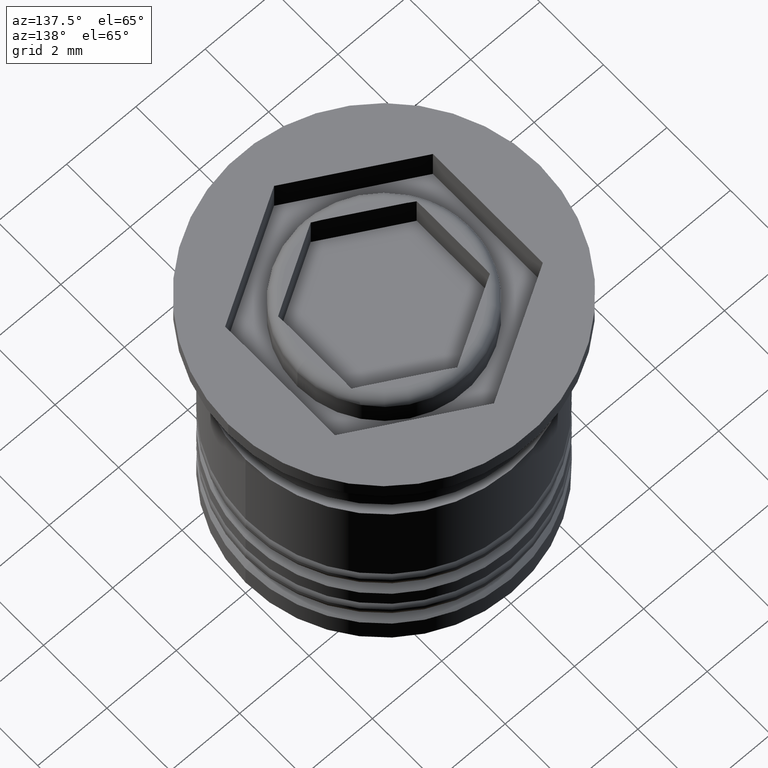
[diagram: clean part render]
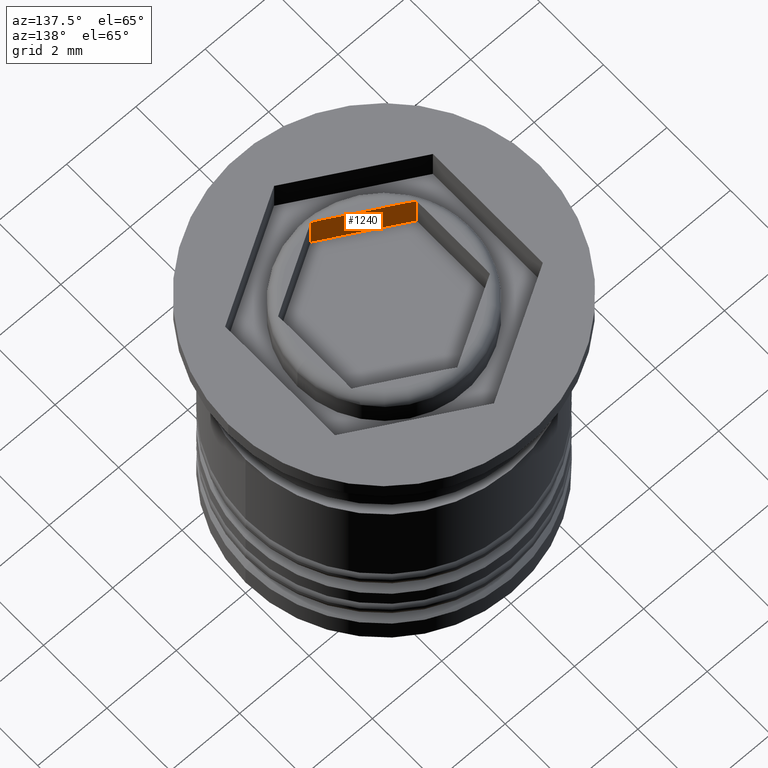
[diagram: same view with one face highlighted and labeled with its STEP entity id]
A machine part, auxiliary view. The second image highlights one B-rep face of the part: STEP entity #1240.
In plain terms, the highlighted planar face has unit normal (-0.5, -0.866, 0).
Its self-contained STEP definition (entity closure, byte-faithful):
#5 = CARTESIAN_POINT ( 'NONE',  ( -2.168404344971008868E-16, -2.309401076758503368, -7.110100926607787919 ) ) ;
#7 = CARTESIAN_POINT ( 'NONE',  ( -0.1369991406722239902, -2.230304586012647139, 0.000000000000000000 ) ) ;
#10 = CARTESIAN_POINT ( 'NONE',  ( -2.000000000000000444, -1.154700538379251684, -1.000000000000000000 ) ) ;
#15 = ORIENTED_EDGE ( 'NONE', *, *, #142, .T. ) ;
#28 = VERTEX_POINT ( 'NONE', #1066 ) ;
#38 = ORIENTED_EDGE ( 'NONE', *, *, #450, .T. ) ;
#93 = CARTESIAN_POINT ( 'NONE',  ( -0.2062746066806217526, -2.190308377064462242, 0.000000000000000000 ) ) ;
#103 = LINE ( 'NONE', #1635, #305 ) ;
#142 = EDGE_CURVE ( 'NONE', #1259, #28, #1412, .T. ) ;
#147 = CARTESIAN_POINT ( 'NONE',  ( -1.931881487280481702, -1.194028780034662729, -0.005256474890640312932 ) ) ;
#236 = CARTESIAN_POINT ( 'NONE',  ( -4.336808689942017736E-16, -2.309401076758503368, -1.000000000000000000 ) ) ;
#265 = VERTEX_POINT ( 'NONE', #1306 ) ;
#305 = VECTOR ( 'NONE', #712, 1000.000000000000000 ) ;
#331 = EDGE_CURVE ( 'NONE', #976, #1748, #1201, .T. ) ;
#450 = EDGE_CURVE ( 'NONE', #1748, #1277, #1967, .T. ) ;
#536 = B_SPLINE_CURVE_WITH_KNOTS ( 'NONE', 3,
 ( #2022, #147, #655, #1887 ),
 .UNSPECIFIED., .F., .F.,
 ( 4, 4 ),
 ( 3.388131789017200980E-21, 0.0002390796478456416675 ),
 .UNSPECIFIED. ) ;
#572 = EDGE_CURVE ( 'NONE', #265, #976, #536, .T. ) ;
#585 = PLANE ( 'NONE',  #1183 ) ;
#604 = EDGE_LOOP ( 'NONE', ( #1255, #38, #734, #15, #697, #1095 ) ) ;
#655 = CARTESIAN_POINT ( 'NONE',  ( -1.863000859327776260, -1.233797029125107469, 7.434342767888522002E-18 ) ) ;
#697 = ORIENTED_EDGE ( 'NONE', *, *, #887, .T. ) ;
#712 = DIRECTION ( 'NONE',  ( -0.000000000000000000, -0.000000000000000000, 1.000000000000000000 ) ) ;
#734 = ORIENTED_EDGE ( 'NONE', *, *, #1581, .F. ) ;
#887 = EDGE_CURVE ( 'NONE', #28, #265, #103, .T. ) ;
#894 = CARTESIAN_POINT ( 'NONE',  ( -2.168404344971008868E-16, -2.309401076758503368, -0.02065898188042571137 ) ) ;
#958 = LINE ( 'NONE', #5, #1153 ) ;
#976 = VERTEX_POINT ( 'NONE', #1899 ) ;
#1055 = DIRECTION ( 'NONE',  ( -0.5000000000000000000, -0.8660254037844387076, 0.000000000000000000 ) ) ;
#1066 = CARTESIAN_POINT ( 'NONE',  ( -2.000000000000000444, -1.154700538379251462, -1.000000000000000000 ) ) ;
#1091 = CARTESIAN_POINT ( 'NONE',  ( -0.06811851271951903375, -2.270072835103092324, -0.005256474890640238339 ) ) ;
#1095 = ORIENTED_EDGE ( 'NONE', *, *, #572, .T. ) ;
#1114 = CARTESIAN_POINT ( 'NONE',  ( -0.2062746066806217526, -2.190308377064462242, 0.000000000000000000 ) ) ;
#1153 = VECTOR ( 'NONE', #1257, 1000.000000000000000 ) ;
#1183 = AXIS2_PLACEMENT_3D ( 'NONE', #1514, #1055, #1476 ) ;
#1201 = LINE ( 'NONE', #1831, #1833 ) ;
#1240 = ADVANCED_FACE ( 'NONE', ( #1326 ), #585, .F. ) ;
#1255 = ORIENTED_EDGE ( 'NONE', *, *, #331, .T. ) ;
#1257 = DIRECTION ( 'NONE',  ( -0.000000000000000000, -0.000000000000000000, 1.000000000000000000 ) ) ;
#1259 = VERTEX_POINT ( 'NONE', #236 ) ;
#1273 = DIRECTION ( 'NONE',  ( -0.8660254037844385966, 0.4999999999999999445, 0.000000000000000000 ) ) ;
#1277 = VERTEX_POINT ( 'NONE', #894 ) ;
#1306 = CARTESIAN_POINT ( 'NONE',  ( -2.000000000000000444, -1.154700538379251684, -0.02065898188042571137 ) ) ;
#1326 = FACE_OUTER_BOUND ( 'NONE', #604, .T. ) ;
#1343 = DIRECTION ( 'NONE',  ( 0.8660254037844385966, -0.5000000000000000000, 0.000000000000000000 ) ) ;
#1412 = LINE ( 'NONE', #10, #1969 ) ;
#1476 = DIRECTION ( 'NONE',  ( 0.8660254037844385966, -0.4999999999999999445, 0.000000000000000000 ) ) ;
#1514 = CARTESIAN_POINT ( 'NONE',  ( -2.000000000000000444, -1.154700538379251684, -7.110100926607787919 ) ) ;
#1581 = EDGE_CURVE ( 'NONE', #1259, #1277, #958, .T. ) ;
#1635 = CARTESIAN_POINT ( 'NONE',  ( -2.000000000000000444, -1.154700538379251684, -7.110100926607787919 ) ) ;
#1719 = CARTESIAN_POINT ( 'NONE',  ( -2.168404344971008868E-16, -2.309401076758503368, -0.02065898188042571137 ) ) ;
#1748 = VERTEX_POINT ( 'NONE', #93 ) ;
#1831 = CARTESIAN_POINT ( 'NONE',  ( -2.000000000000000444, -1.154700538379251684, 0.000000000000000000 ) ) ;
#1833 = VECTOR ( 'NONE', #1343, 1000.000000000000227 ) ;
#1887 = CARTESIAN_POINT ( 'NONE',  ( -1.793725393319378636, -1.273793238073292589, 0.000000000000000000 ) ) ;
#1899 = CARTESIAN_POINT ( 'NONE',  ( -1.793725393319378636, -1.273793238073292589, 0.000000000000000000 ) ) ;
#1967 = B_SPLINE_CURVE_WITH_KNOTS ( 'NONE', 3,
 ( #1114, #7, #1091, #1719 ),
 .UNSPECIFIED., .F., .F.,
 ( 4, 4 ),
 ( 2.722018774469122024E-20, 0.0002390796478456413423 ),
 .UNSPECIFIED. ) ;
#1969 = VECTOR ( 'NONE', #1273, 1000.000000000000114 ) ;
#2022 = CARTESIAN_POINT ( 'NONE',  ( -2.000000000000000444, -1.154700538379251684, -0.02065898188042571137 ) ) ;